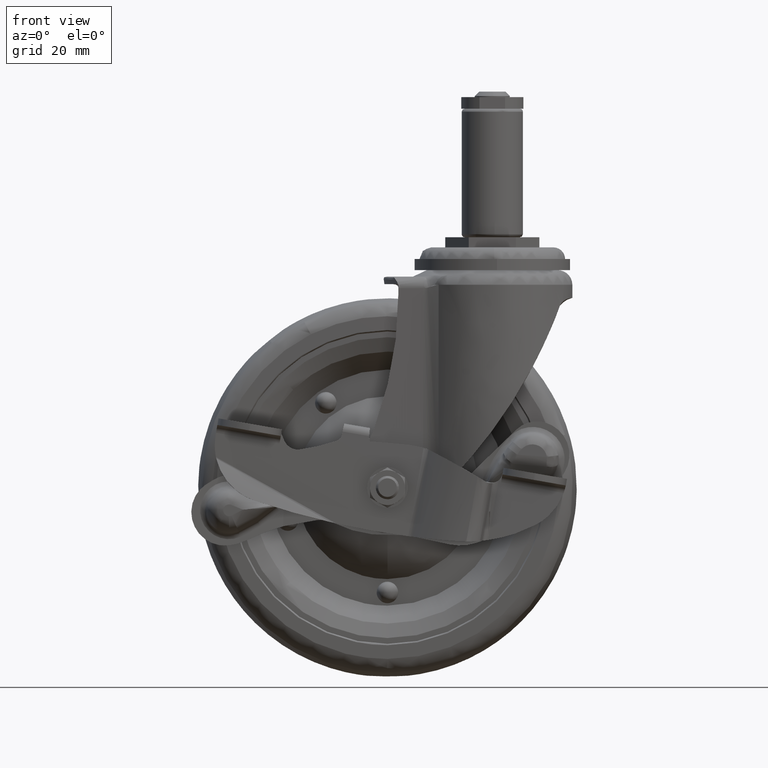
[diagram: clean part render]
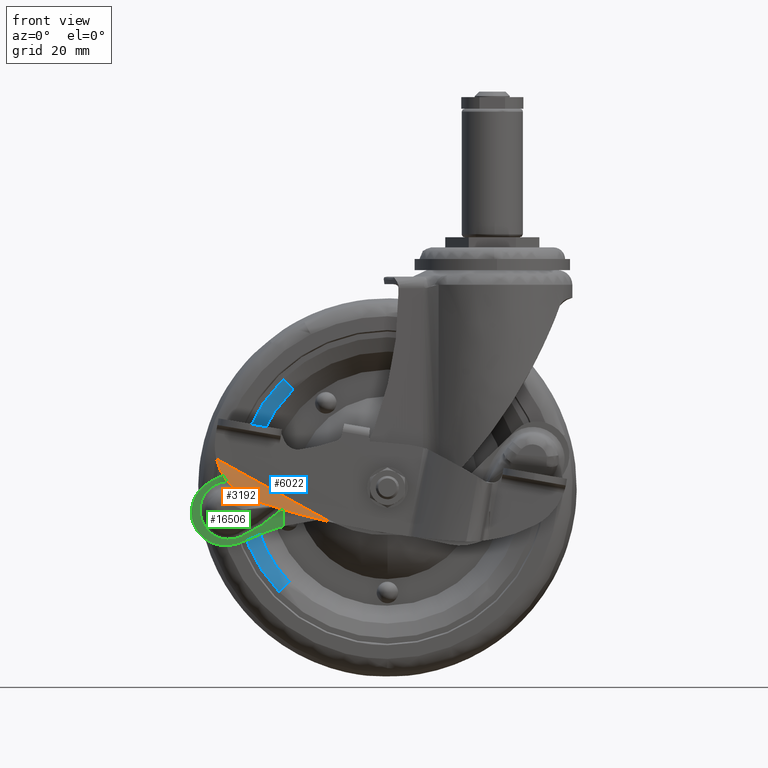
[diagram: same view with three faces highlighted in distinct colors, each labeled with its STEP entity id]
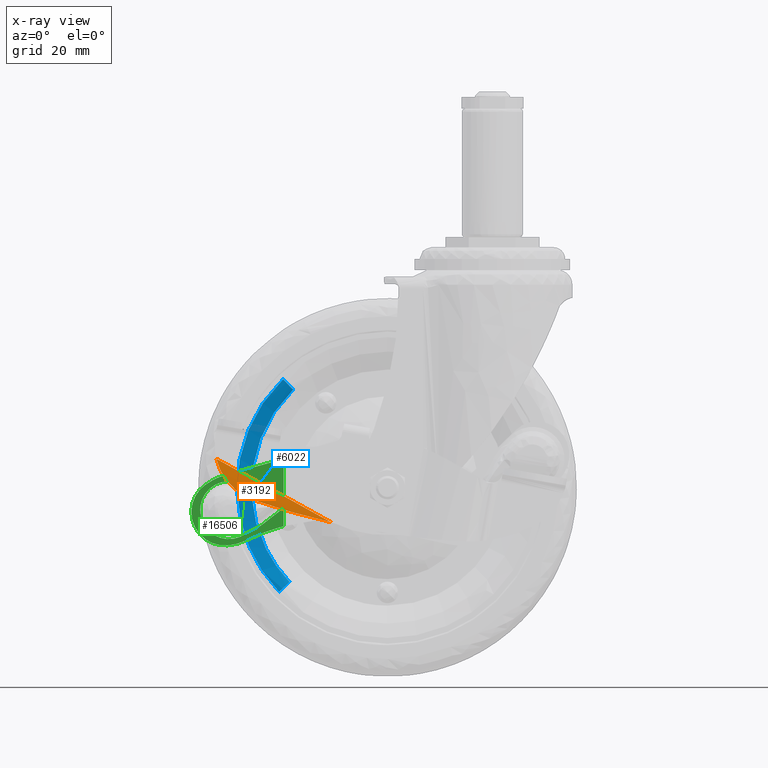
[diagram: x-ray of the same camera — body ghosted, the three highlighted faces saturated]
A machine part, front view with three faces highlighted in distinct colors.
The next image is the same camera in x-ray (body ghosted, the three faces saturated) — at least one of them is partly hidden behind the body in this view.
Their STEP definitions:

[orange] entity #3192 — the highlighted face is a freeform B-spline surface patch.
#1250=CARTESIAN_POINT('',(-55.390257170647203,-21.287599056337900,-96.914940896990998));
#1251=VERTEX_POINT('',#1250);
#1276=CARTESIAN_POINT('',(-94.785634736347106,-21.287599056338049,-75.102106616562295));
#1277=VERTEX_POINT('',#1276);
#1287=CARTESIAN_POINT('',(-55.390257170647203,-21.287599056337900,-96.914940896990998));
#1288=CARTESIAN_POINT('',(-74.976657489770787,-21.287599056370048,-85.807529654345686));
#1289=CARTESIAN_POINT('',(-94.785634736347106,-21.287599056338049,-75.102106616562295));
#1297=(BOUNDED_CURVE()B_SPLINE_CURVE(2,(#1287,#1288,#1289),.UNSPECIFIED.,.F.,.U.)CURVE()GEOMETRIC_REPRESENTATION_ITEM()QUASI_UNIFORM_CURVE()RATIONAL_B_SPLINE_CURVE((1.0,0.999947943834097,1.0))REPRESENTATION_ITEM(''));
#1298=EDGE_CURVE('',#1251,#1277,#1297,.T.);
#2579=CARTESIAN_POINT('',(-81.765373163265195,-24.486802558095000,-89.397686657626494));
#2580=VERTEX_POINT('',#2579);
#2581=CARTESIAN_POINT('',(-81.765373163265195,-24.486802558095000,-89.397686657626494));
#2582=CARTESIAN_POINT('',(-79.582958510828618,-24.306972020824361,-90.139152115354520));
#2583=CARTESIAN_POINT('',(-77.396079506504506,-24.108737278590390,-90.851547409920883));
#2584=CARTESIAN_POINT('',(-73.014203864726028,-23.671042005054311,-92.218711073236321));
#2585=CARTESIAN_POINT('',(-70.819206580186062,-23.431584815675912,-92.873478920368413));
#2586=CARTESIAN_POINT('',(-66.422021251219988,-22.906144585756969,-94.125819586545532));
#2587=CARTESIAN_POINT('',(-64.219832320773094,-22.620166438663659,-94.723391886438975));
#2588=CARTESIAN_POINT('',(-59.809330033453953,-21.995375363423030,-95.861708464142652));
#2589=CARTESIAN_POINT('',(-57.601015450556183,-21.656569489349309,-96.402452197317402));
#2590=CARTESIAN_POINT('',(-55.390257170647203,-21.287599056337900,-96.914940896990998));
#2591=B_SPLINE_CURVE_WITH_KNOTS('',3,(#2581,#2582,#2583,#2584,#2585,#2586,#2587,#2588,#2589,#2590),.UNSPECIFIED.,.F.,.U.,(4,2,2,2,4),(0.0,0.250000000000000,0.500000000000000,0.750000000000000,1.0),.UNSPECIFIED.);
#2592=EDGE_CURVE('',#2580,#1251,#2591,.T.);
#2798=CARTESIAN_POINT('',(-94.785634736347106,-21.287599056338049,-75.102106616562295));
#2799=CARTESIAN_POINT('',(-94.602717943949116,-21.623812770014450,-75.868794635654453));
#2800=CARTESIAN_POINT('',(-94.373360255989624,-21.933202948279540,-76.629939720594692));
#2801=CARTESIAN_POINT('',(-93.816974462597926,-22.502423264476722,-78.137888934616726));
#2802=CARTESIAN_POINT('',(-93.489995067832098,-22.762261393919321,-78.884706765426714));
#2803=CARTESIAN_POINT('',(-93.014803317256906,-23.057546969240072,-79.806819079539153));
#2804=CARTESIAN_POINT('',(-92.916429544868123,-23.115123739031489,-79.990668737558465));
#2805=CARTESIAN_POINT('',(-92.763722956540121,-23.199280469939481,-80.265529940500755));
#2806=CARTESIAN_POINT('',(-92.711983653772151,-23.226950982170351,-80.356956352022692));
#2807=CARTESIAN_POINT('',(-92.607225641633136,-23.281328084033358,-80.538715633973254));
#2808=CARTESIAN_POINT('',(-92.341865653499667,-23.415006284786060,-80.990858071196513));
#2809=CARTESIAN_POINT('',(-92.059260844607465,-23.537582176229101,-81.431734439363439));
#2810=CARTESIAN_POINT('',(-91.348093673822603,-23.811723195215329,-82.468065207988076));
#2811=CARTESIAN_POINT('',(-90.830221631088264,-23.967869938384361,-83.129999238585214));
#2812=CARTESIAN_POINT('',(-89.986348646955193,-24.165253329487012,-84.077605584641589));
#2813=CARTESIAN_POINT('',(-89.693849551953534,-24.224881425653528,-84.385906933091192));
#2814=CARTESIAN_POINT('',(-89.237803355999731,-24.305209475635358,-84.836586043528968));
#2815=CARTESIAN_POINT('',(-89.082902720339078,-24.330464693318969,-84.984848820521421));
#2816=CARTESIAN_POINT('',(-88.767219983133415,-24.377933625583371,-85.277357961947857));
#2817=CARTESIAN_POINT('',(-88.606104906427817,-24.400185426597300,-85.421883679578173));
#2818=CARTESIAN_POINT('',(-87.791415037919521,-24.503092551834559,-86.129168813230791));
#2819=CARTESIAN_POINT('',(-87.108654258982398,-24.559312649979301,-86.648240095291953));
#2820=CARTESIAN_POINT('',(-85.682721389900010,-24.623170519937599,-87.595161017178242));
#2821=CARTESIAN_POINT('',(-84.939549689503394,-24.630803455600660,-88.023011540265529));
#2822=CARTESIAN_POINT('',(-83.971900602396687,-24.609423026841359,-88.499400027764338));
#2823=CARTESIAN_POINT('',(-83.776428800273266,-24.603589742490179,-88.591745050953136));
#2824=CARTESIAN_POINT('',(-83.381545728735858,-24.588748943025241,-88.770486816507670));
#2825=CARTESIAN_POINT('',(-83.182128436213716,-24.579735845167018,-88.856872660402189));
#2826=CARTESIAN_POINT('',(-82.581070166846970,-24.548016188056071,-89.105704540889590));
#2827=CARTESIAN_POINT('',(-82.175595239671225,-24.520604776347220,-89.258315571883060));
#2828=CARTESIAN_POINT('',(-81.765373163265195,-24.486802558095000,-89.397686657626494));
#2829=B_SPLINE_CURVE_WITH_KNOTS('',3,(#2798,#2799,#2800,#2801,#2802,#2803,#2804,#2805,#2806,#2807,#2808,#2809,#2810,#2811,#2812,#2813,#2814,#2815,#2816,#2817,#2818,#2819,#2820,#2821,#2822,#2823,#2824,#2825,#2826,#2827,#2828),.UNSPECIFIED.,.F.,.U.,(4,2,2,2,2,1,2,2,2,2,2,2,2,2,2,4),(0.0,0.125000000000019,0.250000000000037,0.281250000000040,0.296875000000040,0.312500000000041,0.375000000000040,0.500000000000037,0.562500000000034,0.593750000000032,0.625000000000030,0.750000000000021,0.875000000000012,0.906250000000009,0.937500000000006,1.0),.UNSPECIFIED.);
#2830=EDGE_CURVE('',#1277,#2580,#2829,.T.);
#3170=CARTESIAN_POINT('',(-53.275715559173555,-21.102930857863885,-97.746694456337735));
#3171=CARTESIAN_POINT('',(-74.809580383534424,-21.102930857863885,-85.505853498402928));
#3172=CARTESIAN_POINT('',(-96.612753485181329,-21.102930857863885,-73.751400540867223));
#3173=CARTESIAN_POINT('',(-55.021064997887919,-23.148877515643218,-100.817081451292220));
#3174=CARTESIAN_POINT('',(-76.520469705397318,-23.148877515643214,-88.595829211556051));
#3175=CARTESIAN_POINT('',(-98.288751722747733,-23.148877515643211,-76.860186617405873));
#3176=CARTESIAN_POINT('',(-56.872095381197539,-24.770488470817956,-104.073380442264410));
#3177=CARTESIAN_POINT('',(-78.334953411067715,-24.770488470817966,-91.872903018018704));
#3178=CARTESIAN_POINT('',(-100.066231688246210,-24.770488470817966,-80.157209755145985));
#3186=(BOUNDED_SURFACE()B_SPLINE_SURFACE(2,2,((#3170,#3173,#3176),(#3171,#3174,#3177),(#3172,#3175,#3178)),.UNSPECIFIED.,.F.,.F.,.U.)B_SPLINE_SURFACE_WITH_KNOTS((3,3),(3,3),(11.256480624771120,60.830265591049198),(1.852013262391090,10.008276788115500),.UNSPECIFIED.)GEOMETRIC_REPRESENTATION_ITEM()RATIONAL_B_SPLINE_SURFACE(((0.942678607023300,0.941029256464514,0.942576581727601),(0.942636516665965,0.940987239750258,0.942534495925669),(0.942713161374647,0.941063750358099,0.942611132339159)))REPRESENTATION_ITEM('')SURFACE());
#3187=ORIENTED_EDGE('',*,*,#2592,.T.);
#3188=ORIENTED_EDGE('',*,*,#1298,.T.);
#3189=ORIENTED_EDGE('',*,*,#2830,.T.);
#3190=EDGE_LOOP('',(#3187,#3188,#3189));
#3191=FACE_OUTER_BOUND('',#3190,.T.);
#3192=ADVANCED_FACE('',(#3191),#3186,.T.);

[blue] entity #6022 — the highlighted face is a freeform B-spline surface patch.
#3939=CARTESIAN_POINT('',(-68.399482437180566,-9.949747469261986,-52.355657792149870));
#3940=VERTEX_POINT('',#3939);
#3954=CARTESIAN_POINT('',(-69.644530207850153,-9.949747469261975,-118.399670437180600));
#3955=VERTEX_POINT('',#3954);
#3956=CARTESIAN_POINT('',(-68.399482437180566,-9.949747469261986,-52.355657792149870));
#3957=CARTESIAN_POINT('',(-82.708466845046289,-9.949747468305830,-66.135124653396588));
#3958=CARTESIAN_POINT('',(-82.708466845046289,-9.949747468305830,-86.000188000000009));
#3959=CARTESIAN_POINT('',(-82.708466845046289,-9.949747468305830,-104.833712656207470));
#3960=CARTESIAN_POINT('',(-69.644530207850153,-9.949747469261975,-118.399670437180560));
#3968=(BOUNDED_CURVE()B_SPLINE_CURVE(2,(#3956,#3957,#3958,#3959,#3960),.UNSPECIFIED.,.F.,.U.)B_SPLINE_CURVE_WITH_KNOTS((3,2,3),(0.622155737437385,0.750000000000000,0.872155737437384),.UNSPECIFIED.)CURVE()GEOMETRIC_REPRESENTATION_ITEM()RATIONAL_B_SPLINE_CURVE((0.853629213191970,0.850221129724814,1.0,0.856885651461734,0.853629213191970))REPRESENTATION_ITEM(''));
#3969=EDGE_CURVE('',#3940,#3955,#3968,.T.);
#5902=CARTESIAN_POINT('',(-73.209877977453786,-12.0,-121.833079128887310));
#5903=VERTEX_POINT('',#5902);
#5936=CARTESIAN_POINT('',(-71.832891128887340,-12.0,-48.790310022546223));
#5937=VERTEX_POINT('',#5936);
#5951=CARTESIAN_POINT('',(-71.832891128887340,-12.0,-48.790310022546223));
#5952=CARTESIAN_POINT('',(-69.821646882346755,-11.999999997654374,-50.878842391505401));
#5953=CARTESIAN_POINT('',(-68.399482437180566,-9.949747469261986,-52.355657792149870));
#5961=(BOUNDED_CURVE()B_SPLINE_CURVE(2,(#5951,#5952,#5953),.UNSPECIFIED.,.F.,.U.)B_SPLINE_CURVE_WITH_KNOTS((3,3),(-1.556175678129881,-0.434617038430990),.UNSPECIFIED.)CURVE()GEOMETRIC_REPRESENTATION_ITEM()RATIONAL_B_SPLINE_CURVE((0.922813124635538,0.853101096618575,0.923967181575293))REPRESENTATION_ITEM(''));
#5962=EDGE_CURVE('',#5937,#3940,#5961,.T.);
#5969=CARTESIAN_POINT('',(-73.209877977453786,-12.000000000000004,-121.833079128887360));
#5970=CARTESIAN_POINT('',(-71.121345608494593,-11.999999997654367,-119.821834882346810));
#5971=CARTESIAN_POINT('',(-69.644530207850153,-9.949747469261975,-118.399670437180620));
#5979=(BOUNDED_CURVE()B_SPLINE_CURVE(2,(#5969,#5970,#5971),.UNSPECIFIED.,.F.,.U.)B_SPLINE_CURVE_WITH_KNOTS((3,3),(-1.556175678129880,-0.434617038430984),.UNSPECIFIED.)CURVE()GEOMETRIC_REPRESENTATION_ITEM()RATIONAL_B_SPLINE_CURVE((0.922813124635538,0.853101096618574,0.923967181575294))REPRESENTATION_ITEM(''));
#5980=EDGE_CURVE('',#5903,#3955,#5979,.T.);
#5985=CARTESIAN_POINT('',(-72.017873280369599,-11.994918354634446,-48.598219374306346));
#5986=CARTESIAN_POINT('',(-109.419841906063250,-11.994918354634448,-84.616092654675910));
#5987=CARTESIAN_POINT('',(-73.401968625693669,-11.994918354634446,-122.018061280369580));
#5988=CARTESIAN_POINT('',(-69.788039054506626,-12.117474425315422,-50.913741701430531));
#5989=CARTESIAN_POINT('',(-104.874485353076100,-12.117474425315418,-84.701780755937151));
#5990=CARTESIAN_POINT('',(-71.086446298569498,-12.117474425315422,-119.788227054506590));
#5991=CARTESIAN_POINT('',(-68.271338243788293,-9.757841733852004,-52.488726312417207));
#5992=CARTESIAN_POINT('',(-101.782799931371040,-9.757841733852006,-84.760064556205506));
#5993=CARTESIAN_POINT('',(-69.511461687582809,-9.757841733852004,-118.271526243788290));
#6001=(BOUNDED_SURFACE()B_SPLINE_SURFACE(2,2,((#5985,#5988,#5991),(#5986,#5989,#5992),(#5987,#5990,#5993)),.UNSPECIFIED.,.F.,.F.,.U.)B_SPLINE_SURFACE_WITH_KNOTS((3,3),(3,3),(0.0,86.031978658749708),(0.0,6.125948522395704),.UNSPECIFIED.)GEOMETRIC_REPRESENTATION_ITEM()RATIONAL_B_SPLINE_SURFACE(((0.930128207538021,0.845728404796089,0.931397481203657),(0.657699962923023,0.598020290073396,0.658597474939176),(0.930128207538021,0.845728404796089,0.931397481203657)))REPRESENTATION_ITEM('')SURFACE());
#6002=CARTESIAN_POINT('',(-71.832891128887340,-11.999999999999995,-48.790310022546223));
#6003=CARTESIAN_POINT('',(-87.658214313352190,-12.000000000000004,-64.030002099633094));
#6004=CARTESIAN_POINT('',(-87.658214313352190,-12.0,-86.000188000000009));
#6005=CARTESIAN_POINT('',(-87.658214313352190,-12.000000000000004,-106.829521923421450));
#6006=CARTESIAN_POINT('',(-73.209877977453786,-12.000000000000005,-121.833079128887360));
#6014=(BOUNDED_CURVE()B_SPLINE_CURVE(2,(#6002,#6003,#6004,#6005,#6006),.UNSPECIFIED.,.F.,.U.)B_SPLINE_CURVE_WITH_KNOTS((3,2,3),(0.622155737437424,0.750000000000000,0.872155737437423),.UNSPECIFIED.)CURVE()GEOMETRIC_REPRESENTATION_ITEM()RATIONAL_B_SPLINE_CURVE((0.853629213191968,0.850221129724860,1.0,0.856885651461689,0.853629213191968))REPRESENTATION_ITEM(''));
#6015=EDGE_CURVE('',#5937,#5903,#6014,.T.);
#6016=ORIENTED_EDGE('',*,*,#6015,.T.);
#6017=ORIENTED_EDGE('',*,*,#5980,.T.);
#6018=ORIENTED_EDGE('',*,*,#3969,.F.);
#6019=ORIENTED_EDGE('',*,*,#5962,.F.);
#6020=EDGE_LOOP('',(#6016,#6017,#6018,#6019));
#6021=FACE_OUTER_BOUND('',#6020,.T.);
#6022=ADVANCED_FACE('',(#6021),#6001,.T.);

[green] entity #16506 — the highlighted face is a freeform B-spline surface patch.
#8859=CARTESIAN_POINT('',(-73.718794983608205,-14.684033563769120,-88.894457982147799));
#8860=VERTEX_POINT('',#8859);
#8874=CARTESIAN_POINT('',(-79.569680932211199,-15.215931564920400,-86.493897056049192));
#8875=VERTEX_POINT('',#8874);
#8876=CARTESIAN_POINT('',(-79.569680932211199,-15.215931564920400,-86.493897056049192));
#8877=CARTESIAN_POINT('',(-73.718794983608205,-14.684033563769120,-88.894457982147799));
#8878=QUASI_UNIFORM_CURVE('',1,(#8876,#8877),.UNSPECIFIED.,.F.,.U.);
#8879=EDGE_CURVE('',#8875,#8860,#8878,.T.);
#8952=CARTESIAN_POINT('',(-86.795488762817598,-15.872822294899599,-83.558419318397299));
#8953=VERTEX_POINT('',#8952);
#8981=CARTESIAN_POINT('',(-86.795488762817641,-15.872822294899571,-83.558419318397384));
#8982=CARTESIAN_POINT('',(-83.188695259517772,-15.544932421156831,-85.009051092302855));
#8983=CARTESIAN_POINT('',(-79.569680932211185,-15.215931564920380,-86.493897056049221));
#8991=(BOUNDED_CURVE()B_SPLINE_CURVE(2,(#8981,#8982,#8983),.UNSPECIFIED.,.F.,.U.)CURVE()GEOMETRIC_REPRESENTATION_ITEM()QUASI_UNIFORM_CURVE()RATIONAL_B_SPLINE_CURVE((1.0,0.999155433929784,1.0))REPRESENTATION_ITEM(''));
#8992=EDGE_CURVE('',#8953,#8875,#8991,.T.);
#9077=CARTESIAN_POINT('',(-72.983285543542593,-14.617169159910400,-93.054666504507694));
#9078=VERTEX_POINT('',#9077);
#9092=CARTESIAN_POINT('',(-73.718794983608319,-14.684033563769150,-88.894457982147799));
#9093=CARTESIAN_POINT('',(-72.445533718338098,-14.568282696654357,-89.416864549114351));
#9094=CARTESIAN_POINT('',(-72.205931136643102,-14.546500673317411,-90.772111195925348));
#9095=CARTESIAN_POINT('',(-71.966328554948092,-14.524718649980477,-92.127357842736345));
#9096=CARTESIAN_POINT('',(-72.983285543542593,-14.617169159910400,-93.054666504507694));
#9104=(BOUNDED_CURVE()B_SPLINE_CURVE(2,(#9092,#9093,#9094,#9095,#9096),.UNSPECIFIED.,.F.,.U.)B_SPLINE_CURVE_WITH_KNOTS((3,2,3),(0.0,0.500000000000000,1.0),.UNSPECIFIED.)CURVE()GEOMETRIC_REPRESENTATION_ITEM()RATIONAL_B_SPLINE_CURVE((1.0,0.876028798369927,1.0,0.876028798369927,1.0))REPRESENTATION_ITEM(''));
#9105=EDGE_CURVE('',#8860,#9078,#9104,.T.);
#9424=CARTESIAN_POINT('',(-86.502124005019397,-15.846152807637001,-101.888053421124990));
#9425=VERTEX_POINT('',#9424);
#9442=CARTESIAN_POINT('',(-86.502124005019397,-15.846152807637001,-101.888053421124990));
#9443=CARTESIAN_POINT('',(-86.876736583095720,-15.880208450361071,-102.052962688001100));
#9444=CARTESIAN_POINT('',(-87.258240291538911,-15.914890558632390,-102.193169583015500));
#9445=CARTESIAN_POINT('',(-88.034635705399779,-15.985471864158299,-102.425583377874900));
#9446=CARTESIAN_POINT('',(-88.429528573737755,-16.021371167132749,-102.517788278129900));
#9447=CARTESIAN_POINT('',(-89.032081073962061,-16.076148592854839,-102.619481553386900));
#9448=CARTESIAN_POINT('',(-89.235204171976278,-16.094614303991669,-102.647293392677500));
#9449=CARTESIAN_POINT('',(-89.640204539545962,-16.131432469286320,-102.689962256502100));
#9450=CARTESIAN_POINT('',(-89.842477633537669,-16.149820907435000,-102.704922160538300));
#9451=CARTESIAN_POINT('',(-90.448629332651151,-16.204925532612300,-102.731062476650710));
#9452=CARTESIAN_POINT('',(-90.851842800816115,-16.241581252726871,-102.723572150543700));
#9453=CARTESIAN_POINT('',(-91.656505744907676,-16.314732330242741,-102.659075324394910));
#9454=CARTESIAN_POINT('',(-92.057955441143093,-16.351227707672109,-102.602075008539000));
#9455=CARTESIAN_POINT('',(-92.859020931901412,-16.424051744419451,-102.436595807817700));
#9456=CARTESIAN_POINT('',(-93.250618325102351,-16.459651459151441,-102.329745667607500));
#9457=CARTESIAN_POINT('',(-94.015385242609042,-16.529175630079010,-102.070006275160200));
#9458=CARTESIAN_POINT('',(-94.388768176760550,-16.563119487143361,-101.917066309803500));
#9459=CARTESIAN_POINT('',(-94.935275361228165,-16.612801891071019,-101.652880684141000));
#9460=CARTESIAN_POINT('',(-95.115176986261346,-16.629156562072911,-101.559006884438400));
#9461=CARTESIAN_POINT('',(-95.470355995417862,-16.661445519109641,-101.359406366781500));
#9462=CARTESIAN_POINT('',(-95.646100971519104,-16.677422313448449,-101.253340372070300));
#9463=CARTESIAN_POINT('',(-96.159538709564742,-16.724098408142670,-100.921318031646390));
#9464=CARTESIAN_POINT('',(-96.485318827841297,-16.753714742360831,-100.680722798303710));
#9465=CARTESIAN_POINT('',(-97.104800508634540,-16.810031182410800,-100.162139700769200));
#9466=CARTESIAN_POINT('',(-97.398500512013968,-16.836731146503070,-99.884150019156280));
#9467=CARTESIAN_POINT('',(-97.814595816240285,-16.874557941034809,-99.438659674717059));
#9468=CARTESIAN_POINT('',(-97.949207256836829,-16.886795328127011,-99.285398855089497));
#9469=CARTESIAN_POINT('',(-98.210046026617547,-16.910507911398650,-98.969104207804079));
#9470=CARTESIAN_POINT('',(-98.334959988333026,-16.921863710697419,-98.807657975516534));
#9471=CARTESIAN_POINT('',(-98.693318008006088,-16.954441668298209,-98.314031358512977));
#9472=CARTESIAN_POINT('',(-98.910569164617755,-16.974191746656370,-97.972438230887363));
#9473=CARTESIAN_POINT('',(-99.302515563688701,-17.009823189151689,-97.264669210795006));
#9474=CARTESIAN_POINT('',(-99.477212445298591,-17.025704702302331,-96.898494265196788));
#9475=CARTESIAN_POINT('',(-99.706447663542164,-17.046544239331130,-96.330278827194022));
#9476=CARTESIAN_POINT('',(-99.777525093805266,-17.053005815136238,-96.137157455083255));
#9477=CARTESIAN_POINT('',(-99.906784510494390,-17.064756655260439,-95.749515729699851));
#9478=CARTESIAN_POINT('',(-99.965192087170237,-17.070066427756242,-95.554528286354198));
#9479=CARTESIAN_POINT('',(-100.122119147353000,-17.084332504786449,-94.966135721209753));
#9480=CARTESIAN_POINT('',(-100.202409872590100,-17.091631651725869,-94.569312909481553));
#9481=CARTESIAN_POINT('',(-100.314628802853410,-17.101833358821629,-93.766599850062661));
#9482=CARTESIAN_POINT('',(-100.346563166891100,-17.104736478887361,-93.360710757118284));
#9483=CARTESIAN_POINT('',(-100.360137672009800,-17.105970523133429,-92.539502962434298));
#9484=CARTESIAN_POINT('',(-100.341651888566600,-17.104289999645282,-92.131021200484710));
#9485=CARTESIAN_POINT('',(-100.276623168276800,-17.098378305819178,-91.521764458767549));
#9486=CARTESIAN_POINT('',(-100.248712586901500,-17.095840983681139,-91.319239417606525));
#9487=CARTESIAN_POINT('',(-100.180310006351310,-17.089622575701931,-90.915320550309545));
#9488=CARTESIAN_POINT('',(-100.139722064879710,-17.085932767845609,-90.713672870263494));
#9489=CARTESIAN_POINT('',(-100.000468058812000,-17.073273329919392,-90.117109308082192));
#9490=CARTESIAN_POINT('',(-99.884088557483537,-17.062693389603449,-89.728380887494822));
#9491=CARTESIAN_POINT('',(-99.605458129827042,-17.037363385082379,-88.968421611426436));
#9492=CARTESIAN_POINT('',(-99.443205963137814,-17.022613208117299,-88.597191229078675));
#9493=CARTESIAN_POINT('',(-99.211168729600487,-17.001518942770929,-88.144299935339120));
#9494=CARTESIAN_POINT('',(-99.163294991774464,-16.997166790689850,-88.054280990462701));
#9495=CARTESIAN_POINT('',(-99.064579738869526,-16.988192688961579,-87.875375153522967));
#9496=CARTESIAN_POINT('',(-99.013667752026038,-16.983564332799009,-87.786370288585061));
#9497=CARTESIAN_POINT('',(-98.856908691043031,-16.969313528402619,-87.521909254792249));
#9498=CARTESIAN_POINT('',(-98.747504080594197,-16.959367668215680,-87.349745437444653));
#9499=CARTESIAN_POINT('',(-98.404949512810845,-16.928226386110762,-86.845384341047350));
#9500=CARTESIAN_POINT('',(-98.157511232924918,-16.905732027540829,-86.525273082467180));
#9501=CARTESIAN_POINT('',(-97.625044623161443,-16.857326037764079,-85.916846747959994));
#9502=CARTESIAN_POINT('',(-97.340018627599122,-16.831414618767450,-85.628529697512903));
#9503=CARTESIAN_POINT('',(-96.959510112060897,-16.796822982455659,-85.288625376126220));
#9504=CARTESIAN_POINT('',(-96.882077224807475,-16.789783638616932,-85.221576799188540));
#9505=CARTESIAN_POINT('',(-96.725301843692904,-16.775531350574209,-85.090032694899705));
#9506=CARTESIAN_POINT('',(-96.646098436154389,-16.768331050564228,-85.025646944706054));
#9507=CARTESIAN_POINT('',(-96.406074206394749,-16.746510695637038,-84.836592272458148));
#9508=CARTESIAN_POINT('',(-96.242841717286723,-16.731671398572939,-84.716021951495676));
#9509=CARTESIAN_POINT('',(-95.743671857553551,-16.686292381965981,-84.370409214313383));
#9510=CARTESIAN_POINT('',(-95.398296859972646,-16.654894697499969,-84.161405940296760));
#9511=CARTESIAN_POINT('',(-94.861396249553835,-16.606085617301289,-83.879916194891607));
#9512=CARTESIAN_POINT('',(-94.679280974598754,-16.589529705670358,-83.791436958776387));
#9513=CARTESIAN_POINT('',(-94.401311599975131,-16.564259796798030,-83.666869638830804));
#9514=CARTESIAN_POINT('',(-94.307855157789362,-16.555763768123061,-83.626706762735211));
#9515=CARTESIAN_POINT('',(-94.119322808840053,-16.538624486920281,-83.549133272609268));
#9516=CARTESIAN_POINT('',(-94.024093801734168,-16.529967316198409,-83.511666097508538));
#9517=CARTESIAN_POINT('',(-93.545774015062250,-16.486483758207910,-83.332032761846662));
#9518=CARTESIAN_POINT('',(-93.158128046235404,-16.451243263386338,-83.213511140863062));
#9519=CARTESIAN_POINT('',(-92.373217280634478,-16.379887836024970,-83.025013764137654));
#9520=CARTESIAN_POINT('',(-91.975951445189992,-16.343772809060699,-82.955043250526387));
#9521=CARTESIAN_POINT('',(-91.372774959072856,-16.288938657425302,-82.886817926377276));
#9522=CARTESIAN_POINT('',(-91.170499835825140,-16.270550034799040,-82.870214744767210));
#9523=CARTESIAN_POINT('',(-90.865223229292710,-16.242797653665789,-82.854717115329237));
#9524=CARTESIAN_POINT('',(-90.762980846196214,-16.233502904173211,-82.851118054835354));
#9525=CARTESIAN_POINT('',(-90.558781916732514,-16.214939390309990,-82.847119141247745));
#9526=CARTESIAN_POINT('',(-90.456908033568240,-16.205678140765809,-82.846714356516685));
#9527=CARTESIAN_POINT('',(-89.948651320742968,-16.159473047725481,-82.852556307724015));
#9528=CARTESIAN_POINT('',(-89.545593837469113,-16.122831508036331,-82.882310447388988));
#9529=CARTESIAN_POINT('',(-88.746397492048544,-16.050177393361938,-82.990727562410200));
#9530=CARTESIAN_POINT('',(-88.350258769145540,-16.014164831035188,-83.069391522102507));
#9531=CARTESIAN_POINT('',(-87.859496929457265,-15.969550178850110,-83.198907520489939));
#9532=CARTESIAN_POINT('',(-87.761565925727908,-15.960647372404731,-83.226375579045254));
#9533=CARTESIAN_POINT('',(-87.566152075936515,-15.942882501064840,-83.284479794149576));
#9534=CARTESIAN_POINT('',(-87.468567441307428,-15.934011182676789,-83.315150583274516));
#9535=CARTESIAN_POINT('',(-87.177343072162330,-15.907536275936931,-83.411701460585363));
#9536=CARTESIAN_POINT('',(-86.985341265169055,-15.890081589885250,-83.482061738575780));
#9537=CARTESIAN_POINT('',(-86.795488762817598,-15.872822294899599,-83.558419318397299));
#9538=B_SPLINE_CURVE_WITH_KNOTS('',3,(#9442,#9443,#9444,#9445,#9446,#9447,#9448,#9449,#9450,#9451,#9452,#9453,#9454,#9455,#9456,#9457,#9458,#9459,#9460,#9461,#9462,#9463,#9464,#9465,#9466,#9467,#9468,#9469,#9470,#9471,#9472,#9473,#9474,#9475,#9476,#9477,#9478,#9479,#9480,#9481,#9482,#9483,#9484,#9485,#9486,#9487,#9488,#9489,#9490,#9491,#9492,#9493,#9494,#9495,#9496,#9497,#9498,#9499,#9500,#9501,#9502,#9503,#9504,#9505,#9506,#9507,#9508,#9509,#9510,#9511,#9512,#9513,#9514,#9515,#9516,#9517,#9518,#9519,#9520,#9521,#9522,#9523,#9524,#9525,#9526,#9527,#9528,#9529,#9530,#9531,#9532,#9533,#9534,#9535,#9536,#9537),.UNSPECIFIED.,.F.,.U.,(4,2,2,2,2,2,2,2,2,2,2,2,2,2,2,2,2,2,2,2,2,2,2,2,2,2,2,2,2,2,2,2,2,2,2,2,2,2,2,2,2,2,2,2,2,2,2,4),(0.0,0.031250000000000,0.062500000000001,0.078125000000001,0.093750000000002,0.125000000000003,0.156250000000004,0.187500000000006,0.218750000000007,0.234375000000008,0.250000000000009,0.281250000000011,0.312500000000012,0.328125000000012,0.343750000000013,0.375000000000014,0.406250000000016,0.421875000000016,0.437500000000016,0.468750000000017,0.500000000000017,0.531250000000018,0.546875000000018,0.562500000000018,0.593750000000020,0.625000000000021,0.632812500000021,0.640625000000020,0.656250000000020,0.687500000000018,0.718750000000017,0.726562500000017,0.734375000000017,0.750000000000016,0.781250000000013,0.796875000000012,0.804687500000012,0.812500000000011,0.843750000000011,0.875000000000011,0.890625000000011,0.898437500000010,0.906250000000009,0.937500000000006,0.968750000000003,0.976562500000002,0.984375000000001,1.0),.UNSPECIFIED.);
#9539=EDGE_CURVE('',#9425,#8953,#9538,.T.);
#9594=CARTESIAN_POINT('',(-79.569680932211298,-15.215931564920400,-98.141558755063713));
#9595=VERTEX_POINT('',#9594);
#9609=CARTESIAN_POINT('',(-72.983285543542522,-14.617169159910359,-93.054666504507694));
#9610=CARTESIAN_POINT('',(-76.068271704295810,-14.897622066854444,-95.867700310652396));
#9611=CARTESIAN_POINT('',(-79.569680932211270,-15.215931564920391,-98.141558755063713));
#9619=(BOUNDED_CURVE()B_SPLINE_CURVE(2,(#9609,#9610,#9611),.UNSPECIFIED.,.F.,.U.)CURVE()GEOMETRIC_REPRESENTATION_ITEM()QUASI_UNIFORM_CURVE()RATIONAL_B_SPLINE_CURVE((1.0,0.996666055392773,1.0))REPRESENTATION_ITEM(''));
#9620=EDGE_CURVE('',#9078,#9595,#9619,.T.);
#9688=CARTESIAN_POINT('',(-79.569680932211298,-15.215931564920400,-98.141558755063713));
#9689=CARTESIAN_POINT('',(-80.675022253874531,-15.316417003321909,-98.859381075911656));
#9690=CARTESIAN_POINT('',(-81.805441990158116,-15.419182294505680,-99.530415263053314));
#9691=CARTESIAN_POINT('',(-84.116182082196858,-15.629249290672130,-100.779385373702100));
#9692=CARTESIAN_POINT('',(-85.296501609958810,-15.736550920382800,-101.357322841974200));
#9693=CARTESIAN_POINT('',(-86.502124005019397,-15.846152807637001,-101.888053421124990));
#9694=B_SPLINE_CURVE_WITH_KNOTS('',3,(#9688,#9689,#9690,#9691,#9692,#9693),.UNSPECIFIED.,.F.,.U.,(4,2,4),(0.0,0.500000000000000,1.0),.UNSPECIFIED.);
#9695=EDGE_CURVE('',#9595,#9425,#9694,.T.);
#13754=CARTESIAN_POINT('',(-84.311057709022393,-15.646965232717800,-103.039210953001400));
#13755=VERTEX_POINT('',#13754);
#13786=CARTESIAN_POINT('',(-71.690228999999903,-14.499618724484460,-98.247703269983504));
#13787=VERTEX_POINT('',#13786);
#13793=CARTESIAN_POINT('',(-84.311057709022393,-15.646965232717800,-103.039210953001400));
#13794=CARTESIAN_POINT('',(-78.235527915198290,-15.094645091519116,-100.024771437398210));
#13795=CARTESIAN_POINT('',(-71.690228999999903,-14.499618724484460,-98.247703269983504));
#13803=(BOUNDED_CURVE()B_SPLINE_CURVE(2,(#13793,#13794,#13795),.UNSPECIFIED.,.F.,.U.)CURVE()GEOMETRIC_REPRESENTATION_ITEM()QUASI_UNIFORM_CURVE()RATIONAL_B_SPLINE_CURVE((1.0,0.995228255576617,1.0))REPRESENTATION_ITEM(''));
#13804=EDGE_CURVE('',#13755,#13787,#13803,.T.);
#14083=CARTESIAN_POINT('',(-91.687982955768007,-16.317593890985101,-80.724560175715098));
#14084=VERTEX_POINT('',#14083);
#14085=CARTESIAN_POINT('',(-71.690228999999903,-14.499618724484460,-75.168450951516505));
#14086=VERTEX_POINT('',#14085);
#14087=CARTESIAN_POINT('',(-91.687982955768007,-16.317593890985101,-80.724560175715098));
#14088=CARTESIAN_POINT('',(-71.690228999999903,-14.499618724484460,-75.168450951516505));
#14089=QUASI_UNIFORM_CURVE('',1,(#14087,#14088),.UNSPECIFIED.,.F.,.U.);
#14090=EDGE_CURVE('',#14084,#14086,#14089,.T.);
#14236=CARTESIAN_POINT('',(-91.044065606923411,-16.259056029579899,-104.875300552141000));
#14237=VERTEX_POINT('',#14236);
#14238=CARTESIAN_POINT('',(-98.751255690375899,-16.959708723187749,-84.190973292463809));
#14239=VERTEX_POINT('',#14238);
#14240=CARTESIAN_POINT('',(-91.044065606923397,-16.259056029579909,-104.875300552140900));
#14241=CARTESIAN_POINT('',(-99.637853834555514,-17.040308445154054,-105.494103958834980));
#14242=CARTESIAN_POINT('',(-102.646223831384800,-17.313796255734090,-97.420330137399176));
#14243=CARTESIAN_POINT('',(-105.654593828214020,-17.587284066314133,-89.346556315963340));
#14244=CARTESIAN_POINT('',(-98.751255690376041,-16.959708723187831,-84.190973292463809));
#14252=(BOUNDED_CURVE()B_SPLINE_CURVE(2,(#14240,#14241,#14242,#14243,#14244),.UNSPECIFIED.,.F.,.U.)B_SPLINE_CURVE_WITH_KNOTS((3,2,3),(0.0,0.500000000000000,1.0),.UNSPECIFIED.)CURVE()GEOMETRIC_REPRESENTATION_ITEM()RATIONAL_B_SPLINE_CURVE((1.0,0.800299259539959,1.0,0.800299259539959,1.0))REPRESENTATION_ITEM(''));
#14253=EDGE_CURVE('',#14237,#14239,#14252,.T.);
#14283=CARTESIAN_POINT('',(-84.311057709022393,-15.646965232717800,-103.039210953001400));
#14284=CARTESIAN_POINT('',(-87.496863439285846,-15.936583542640285,-104.619882063429740));
#14285=CARTESIAN_POINT('',(-91.044065606923411,-16.259056029579899,-104.875300552141000));
#14293=(BOUNDED_CURVE()B_SPLINE_CURVE(2,(#14283,#14284,#14285),.UNSPECIFIED.,.F.,.U.)CURVE()GEOMETRIC_REPRESENTATION_ITEM()QUASI_UNIFORM_CURVE()RATIONAL_B_SPLINE_CURVE((1.0,0.981174400910606,1.0))REPRESENTATION_ITEM(''));
#14294=EDGE_CURVE('',#13755,#14237,#14293,.T.);
#14316=CARTESIAN_POINT('',(-98.751255690375899,-16.959708723187749,-84.190973292463809));
#14317=CARTESIAN_POINT('',(-95.544388477913969,-16.668175735662452,-81.796008004890481));
#14318=CARTESIAN_POINT('',(-91.687982955768007,-16.317593890985101,-80.724560175715098));
#14326=(BOUNDED_CURVE()B_SPLINE_CURVE(2,(#14316,#14317,#14318),.UNSPECIFIED.,.F.,.U.)CURVE()GEOMETRIC_REPRESENTATION_ITEM()QUASI_UNIFORM_CURVE()RATIONAL_B_SPLINE_CURVE((1.0,0.982893508843921,1.0))REPRESENTATION_ITEM(''));
#14327=EDGE_CURVE('',#14239,#14084,#14326,.T.);
#16456=CARTESIAN_POINT('',(-71.690228999999903,-14.499618724484460,-75.168450951516505));
#16457=CARTESIAN_POINT('',(-71.690228999999903,-14.499618724484460,-98.247703269983504));
#16458=QUASI_UNIFORM_CURVE('',1,(#16456,#16457),.UNSPECIFIED.,.F.,.U.);
#16459=EDGE_CURVE('',#14086,#13787,#16458,.T.);
#16485=CARTESIAN_POINT('',(-70.107886957597401,-14.355769643014570,-106.389218050464610));
#16486=CARTESIAN_POINT('',(-104.951142376601100,-17.523334021089070,-106.389218050464610));
#16487=CARTESIAN_POINT('',(-70.107886957597401,-14.355769643014570,-73.683162989314553));
#16488=CARTESIAN_POINT('',(-104.951142376601100,-17.523334021089070,-73.683162989314553));
#16489=B_SPLINE_SURFACE_WITH_KNOTS('',1,1,((#16485,#16487),(#16486,#16488)),.UNSPECIFIED.,.F.,.F.,.U.,(2,2),(2,2),(0.0,34.986939167111743),(0.0,32.706055061150067),.UNSPECIFIED.);
#16490=ORIENTED_EDGE('',*,*,#14090,.F.);
#16491=ORIENTED_EDGE('',*,*,#14327,.F.);
#16492=ORIENTED_EDGE('',*,*,#14253,.F.);
#16493=ORIENTED_EDGE('',*,*,#14294,.F.);
#16494=ORIENTED_EDGE('',*,*,#13804,.T.);
#16495=ORIENTED_EDGE('',*,*,#16459,.F.);
#16496=EDGE_LOOP('',(#16490,#16491,#16492,#16493,#16494,#16495));
#16497=FACE_OUTER_BOUND('',#16496,.T.);
#16498=ORIENTED_EDGE('',*,*,#9539,.T.);
#16499=ORIENTED_EDGE('',*,*,#8992,.T.);
#16500=ORIENTED_EDGE('',*,*,#8879,.T.);
#16501=ORIENTED_EDGE('',*,*,#9105,.T.);
#16502=ORIENTED_EDGE('',*,*,#9620,.T.);
#16503=ORIENTED_EDGE('',*,*,#9695,.T.);
#16504=EDGE_LOOP('',(#16498,#16499,#16500,#16501,#16502,#16503));
#16505=FACE_BOUND('',#16504,.T.);
#16506=ADVANCED_FACE('',(#16497,#16505),#16489,.F.);